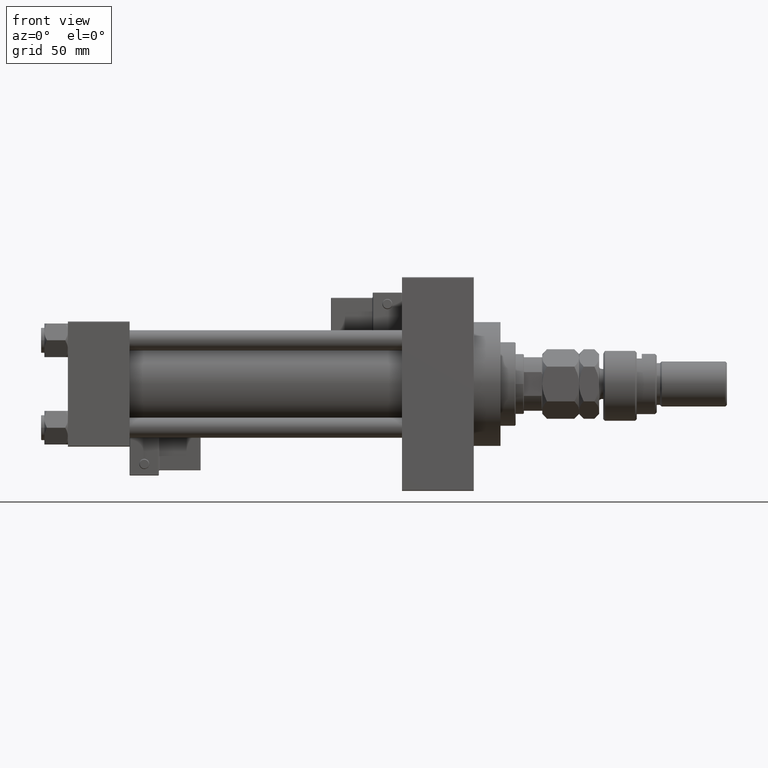
[diagram: clean part render]
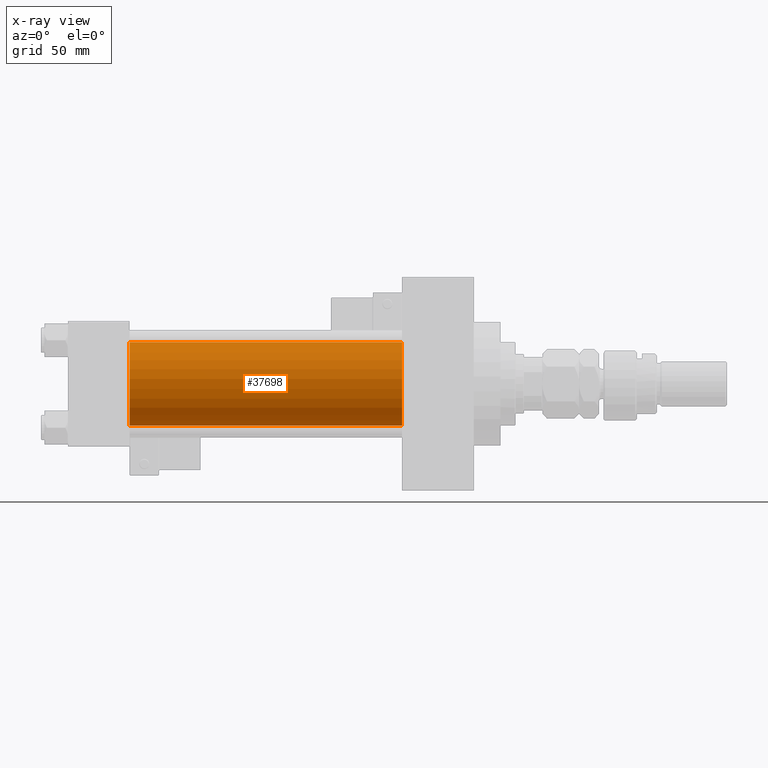
[diagram: x-ray — body ghosted, one internal face saturated and labeled with its STEP entity id]
A machine part, front view, then the same camera in x-ray: the body is ghosted and one INTERNAL B-rep face — a face not visible from any outside direction — is saturated and labeled: STEP entity #37698.
In plain terms, the highlighted cylindrical surface (partial cylindrical patch) has radius 25 mm, axis along (-1, -0, -0).
Its self-contained STEP definition (entity closure, byte-faithful):
#49 = CYLINDRICAL_SURFACE ( 'NONE', #34029, 25.00000000000000000 ) ;
#1620 = DIRECTION ( 'NONE',  ( 1.000000000000000000, 0.000000000000000000, 0.000000000000000000 ) ) ;
#2763 = DIRECTION ( 'NONE',  ( -1.000000000000000000, -0.000000000000000000, -0.000000000000000000 ) ) ;
#3985 = CIRCLE ( 'NONE', #26949, 25.00000000000000000 ) ;
#4358 = CARTESIAN_POINT ( 'NONE',  ( 200.0000000000000000, -2.602085213965210642E-15, 25.00000000000000000 ) ) ;
#5652 = CARTESIAN_POINT ( 'NONE',  ( 37.00000000000000000, -2.602085213965210642E-15, 25.00000000000000000 ) ) ;
#7404 = ORIENTED_EDGE ( 'NONE', *, *, #33310, .T. ) ;
#7797 = DIRECTION ( 'NONE',  ( 1.000000000000000000, 0.000000000000000000, 0.000000000000000000 ) ) ;
#8748 = CIRCLE ( 'NONE', #44968, 25.00000000000000000 ) ;
#10062 = VECTOR ( 'NONE', #37824, 1000.000000000000000 ) ;
#13762 = EDGE_CURVE ( 'NONE', #49619, #47801, #3985, .T. ) ;
#13841 = ORIENTED_EDGE ( 'NONE', *, *, #13762, .T. ) ;
#17889 = ORIENTED_EDGE ( 'NONE', *, *, #44156, .F. ) ;
#18542 = DIRECTION ( 'NONE',  ( 0.000000000000000000, 0.000000000000000000, 1.000000000000000000 ) ) ;
#21073 = CARTESIAN_POINT ( 'NONE',  ( 200.0000000000000000, -2.602085213965210642E-15, 0.000000000000000000 ) ) ;
#21082 = ORIENTED_EDGE ( 'NONE', *, *, #52091, .F. ) ;
#21710 = CARTESIAN_POINT ( 'NONE',  ( 200.0000000000000000, 4.595317839031724996E-16, -25.00000000000000000 ) ) ;
#24288 = VECTOR ( 'NONE', #2763, 1000.000000000000000 ) ;
#26949 = AXIS2_PLACEMENT_3D ( 'NONE', #30914, #1620, #38936 ) ;
#30914 = CARTESIAN_POINT ( 'NONE',  ( 200.0000000000000000, -2.602085213965210642E-15, 0.000000000000000000 ) ) ;
#33121 = VERTEX_POINT ( 'NONE', #36210 ) ;
#33310 = EDGE_CURVE ( 'NONE', #47801, #33121, #36769, .T. ) ;
#33500 = FACE_OUTER_BOUND ( 'NONE', #34578, .T. ) ;
#34029 = AXIS2_PLACEMENT_3D ( 'NONE', #21073, #37928, #18542 ) ;
#34578 = EDGE_LOOP ( 'NONE', ( #13841, #7404, #17889, #21082 ) ) ;
#36210 = CARTESIAN_POINT ( 'NONE',  ( 37.00000000000000000, 4.595317839031724996E-16, -25.00000000000000000 ) ) ;
#36534 = CARTESIAN_POINT ( 'NONE',  ( 37.00000000000000000, -2.602085213965210642E-15, 0.000000000000000000 ) ) ;
#36769 = LINE ( 'NONE', #37044, #24288 ) ;
#37044 = CARTESIAN_POINT ( 'NONE',  ( 200.0000000000000000, 4.595317839031724996E-16, -25.00000000000000000 ) ) ;
#37698 = ADVANCED_FACE ( 'NONE', ( #33500 ), #49, .F. ) ;
#37824 = DIRECTION ( 'NONE',  ( -1.000000000000000000, -0.000000000000000000, -0.000000000000000000 ) ) ;
#37928 = DIRECTION ( 'NONE',  ( -1.000000000000000000, -0.000000000000000000, -0.000000000000000000 ) ) ;
#38273 = VERTEX_POINT ( 'NONE', #5652 ) ;
#38936 = DIRECTION ( 'NONE',  ( 0.000000000000000000, 0.000000000000000000, -1.000000000000000000 ) ) ;
#44156 = EDGE_CURVE ( 'NONE', #38273, #33121, #8748, .T. ) ;
#44968 = AXIS2_PLACEMENT_3D ( 'NONE', #36534, #7797, #53697 ) ;
#46091 = CARTESIAN_POINT ( 'NONE',  ( 200.0000000000000000, -2.602085213965210642E-15, 25.00000000000000000 ) ) ;
#47801 = VERTEX_POINT ( 'NONE', #21710 ) ;
#49619 = VERTEX_POINT ( 'NONE', #46091 ) ;
#51075 = LINE ( 'NONE', #4358, #10062 ) ;
#52091 = EDGE_CURVE ( 'NONE', #49619, #38273, #51075, .T. ) ;
#53697 = DIRECTION ( 'NONE',  ( 0.000000000000000000, 0.000000000000000000, -1.000000000000000000 ) ) ;